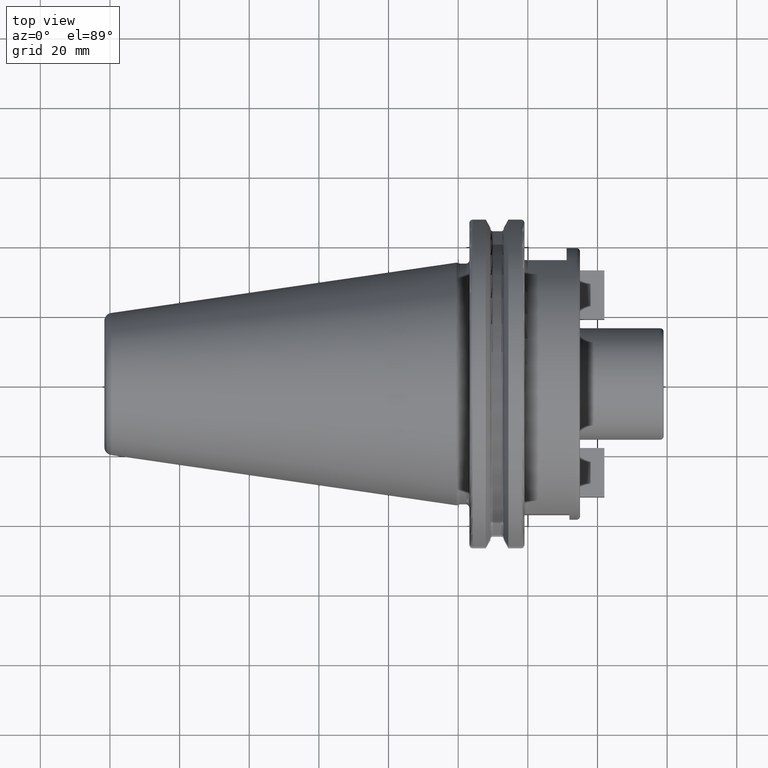
[diagram: clean part render]
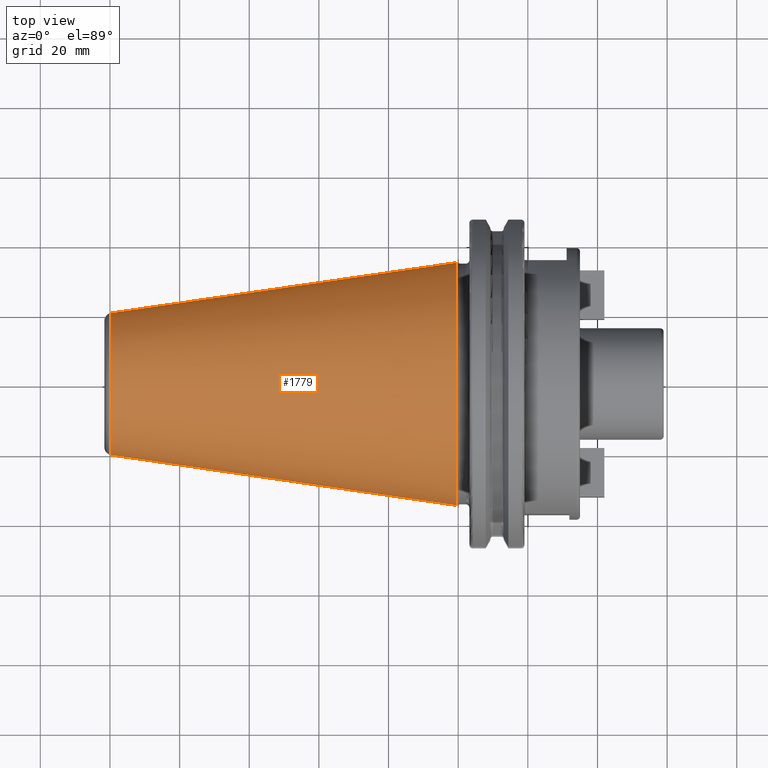
[diagram: same view with one face highlighted and labeled with its STEP entity id]
A machine part, top view. The second image highlights one B-rep face of the part: STEP entity #1779.
In plain terms, the highlighted conical surface has half-angle 8.298 deg.
Its self-contained STEP definition (entity closure, byte-faithful):
#37=CARTESIAN_POINT('',(-9.967471700563E1,0.E0,0.E0));
#38=DIRECTION('',(1.E0,0.E0,0.E0));
#39=DIRECTION('',(0.E0,1.E0,0.E0));
#40=AXIS2_PLACEMENT_3D('',#37,#38,#39);
#42=CARTESIAN_POINT('',(-4.896823332305E-1,0.E0,0.E0));
#43=DIRECTION('',(1.E0,0.E0,0.E0));
#44=DIRECTION('',(0.E0,1.E0,0.E0));
#45=AXIS2_PLACEMENT_3D('',#42,#43,#44);
#47=DIRECTION('',(-9.895312636440E-1,-1.443186691705E-1,0.E0));
#48=VECTOR('',#47,1.002343617797E2);
#49=CARTESIAN_POINT('',(-4.896823332305E-1,3.485358204157E1,0.E0));
#50=LINE('',#49,#48);
#51=DIRECTION('',(-9.895312636440E-1,1.443186691705E-1,0.E0));
#52=VECTOR('',#51,1.002343617797E2);
#53=CARTESIAN_POINT('',(-4.896823332305E-1,-3.485358204157E1,0.E0));
#54=LINE('',#53,#52);
#1411=CARTESIAN_POINT('',(-9.967471700563E1,2.038789234437E1,0.E0));
#1413=VERTEX_POINT('',#1411);
#1415=CARTESIAN_POINT('',(-9.967471700563E1,-2.038789234437E1,0.E0));
#1417=VERTEX_POINT('',#1415);
#1479=CARTESIAN_POINT('',(-4.896823332305E-1,3.485358204157E1,0.E0));
#1480=VERTEX_POINT('',#1479);
#1481=CARTESIAN_POINT('',(-4.896823332305E-1,-3.485358204157E1,0.E0));
#1482=VERTEX_POINT('',#1481);
#1765=CARTESIAN_POINT('',(-5.008219966943E1,0.E0,0.E0));
#1766=DIRECTION('',(1.E0,0.E0,0.E0));
#1767=DIRECTION('',(0.E0,-1.E0,0.E0));
#1768=AXIS2_PLACEMENT_3D('',#1765,#1766,#1767);
#1769=CONICAL_SURFACE('',#1768,2.762073719297E1,8.297826828206E0);
#1771=ORIENTED_EDGE('',*,*,#1770,.F.);
#1773=ORIENTED_EDGE('',*,*,#1772,.T.);
#1775=ORIENTED_EDGE('',*,*,#1774,.T.);
#1776=ORIENTED_EDGE('',*,*,#1758,.F.);
#1777=EDGE_LOOP('',(#1771,#1773,#1775,#1776));
#1778=FACE_OUTER_BOUND('',#1777,.F.);
#1779=ADVANCED_FACE('',(#1778),#1769,.T.);
#41=CIRCLE('',#40,2.038789234437E1);
#46=CIRCLE('',#45,3.485358204157E1);
#1758=EDGE_CURVE('',#1413,#1417,#41,.T.);
#1770=EDGE_CURVE('',#1480,#1413,#50,.T.);
#1772=EDGE_CURVE('',#1480,#1482,#46,.T.);
#1774=EDGE_CURVE('',#1482,#1417,#54,.T.);